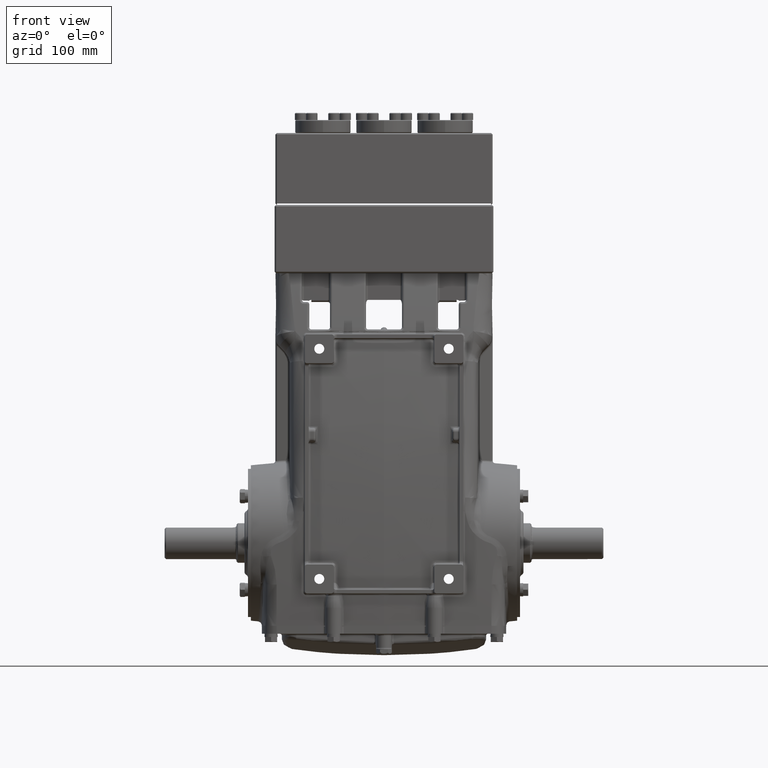
[diagram: clean part render]
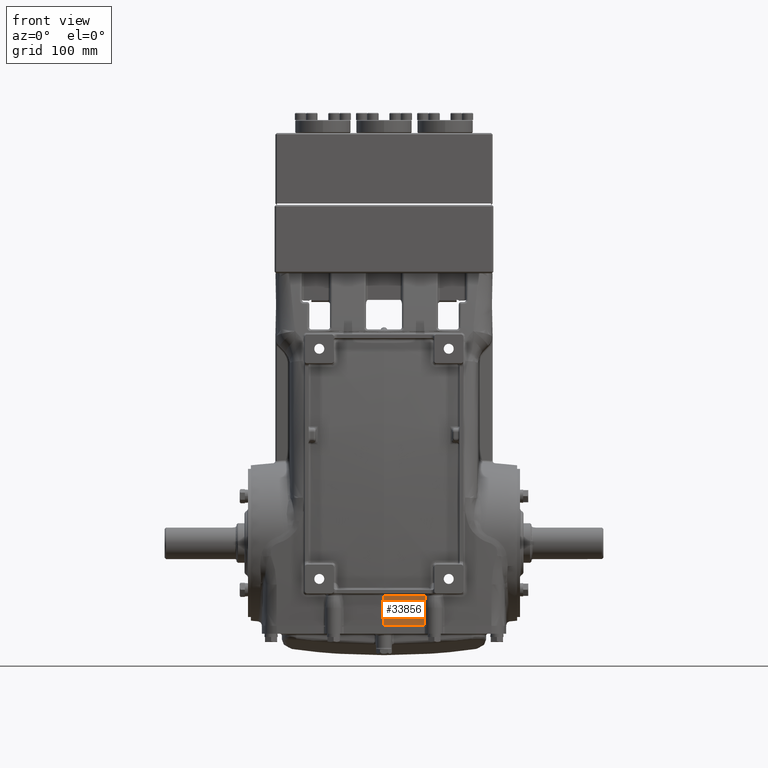
[diagram: same view with one face highlighted and labeled with its STEP entity id]
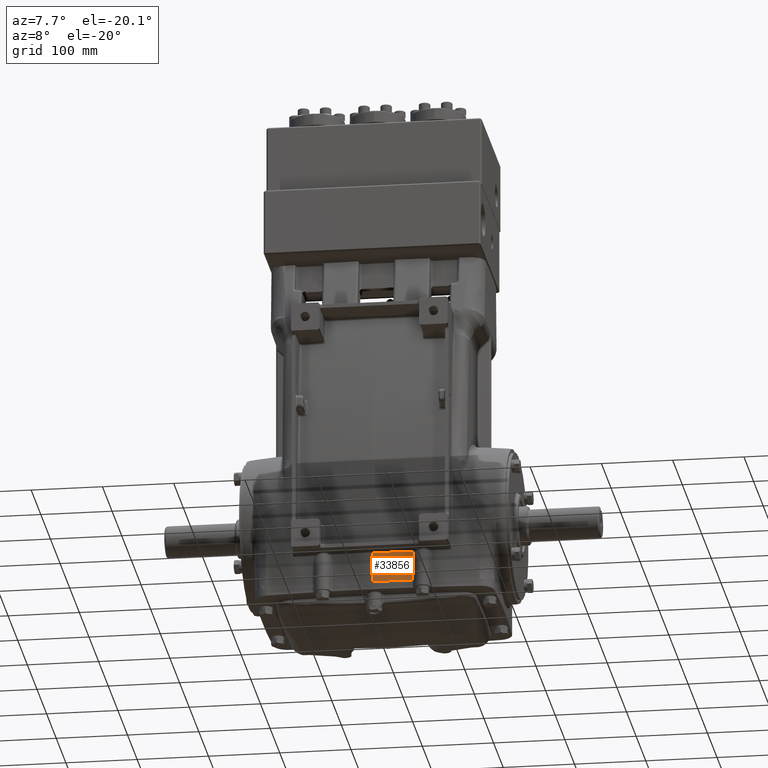
[diagram: same view with one face highlighted and labeled with its STEP entity id]
A machine part, front view. The second image highlights one B-rep face of the part: STEP entity #33856.
A second angle (auxiliary view) of the same face is appended — the face is thin or edge-on in the first view.
In plain terms, the highlighted face is a freeform B-spline surface patch.
Its self-contained STEP definition (entity closure, byte-faithful):
#74 = CARTESIAN_POINT ( 'NONE',  ( 8.136273316822876467, -4.136040923421456128, -4.592266307971319073 ) ) ;
#473 = CARTESIAN_POINT ( 'NONE',  ( 8.135920943346530265, -4.138785722996266792, -4.527559055118102194 ) ) ;
#870 = CARTESIAN_POINT ( 'NONE',  ( 9.804603538636959215, -4.195612680810072881, 1.943166230203482225 ) ) ;
#1003 = ORIENTED_EDGE ( 'NONE', *, *, #52992, .F. ) ;
#1137 = EDGE_CURVE ( 'NONE', #8242, #59602, #36420, .T. ) ;
#1263 = CARTESIAN_POINT ( 'NONE',  ( 6.833064749036533492, -4.271718344480565754, -4.656973560824541281 ) ) ;
#1303 = B_SPLINE_CURVE_WITH_KNOTS ( 'NONE', 3,
 ( #53174, #22742, #47550, #66405, #28757, #17935, #54354 ),
 .UNSPECIFIED., .F., .F.,
 ( 4, 1, 1, 1, 4 ),
 ( 0.000000000000000000, 0.08245597491133860313, 0.1485427382782447125, 0.1620810417057126085, 0.2223918696806881645 ),
 .UNSPECIFIED. ) ;
#1662 = CARTESIAN_POINT ( 'NONE',  ( 6.778283963192261119, -4.023856148172574976, 8.422581710757208739 ) ) ;
#2060 = CARTESIAN_POINT ( 'NONE',  ( 0.7392324407370322037, -4.595575017248754612, -4.721680813677755495 ) ) ;
#2459 = CARTESIAN_POINT ( 'NONE',  ( 6.833335941045664441, -4.268988197017606900, -4.721680813677756383 ) ) ;
#4029 = CARTESIAN_POINT ( 'NONE',  ( 2.286396843509931109, -4.621172251681104903, -2.871569680101456523 ) ) ;
#5303 = CARTESIAN_POINT ( 'NONE',  ( 8.136625690299220892, -4.133296123846644576, -4.656973560824535063 ) ) ;
#5703 = CARTESIAN_POINT ( 'NONE',  ( 9.330223120179205409, -3.732059769306459884, 8.422581710757210516 ) ) ;
#6084 = CARTESIAN_POINT ( 'NONE',  ( 10.04577710926009182, -3.885247339332980054, -4.656973560824543945 ) ) ;
#6882 = CARTESIAN_POINT ( 'NONE',  ( 8.136978063775567094, -4.130551324271833913, -4.721680813677751054 ) ) ;
#7276 = CARTESIAN_POINT ( 'NONE',  ( 0.8149290258095023276, -3.028218001076291355, 14.76377952755897383 ) ) ;
#7284 = VERTEX_POINT ( 'NONE', #35655 ) ;
#7668 = CARTESIAN_POINT ( 'NONE',  ( 2.708190288782601929, -4.552099645568209674, -4.656973560824543057 ) ) ;
#8061 = CARTESIAN_POINT ( 'NONE',  ( 0.7399819118763637515, -4.603681021773706306, -4.527559055118107523 ) ) ;
#8167 = CARTESIAN_POINT ( 'NONE',  ( 0.7622767278752563547, -4.658059392713063573, -2.871568059938352846 ) ) ;
#8242 = VERTEX_POINT ( 'NONE', #33223 ) ;
#8461 = CARTESIAN_POINT ( 'NONE',  ( 4.649375982716229316, -4.726046614213196939, 1.943166230203471567 ) ) ;
#8859 = CARTESIAN_POINT ( 'NONE',  ( 1.925340981245132754, -4.581360688026997252, -4.527559055118101305 ) ) ;
#10429 = CARTESIAN_POINT ( 'NONE',  ( 6.003581252353306379E-15, -4.600890810441183199, -4.656973560824543945 ) ) ;
#11021 = CARTESIAN_POINT ( 'NONE',  ( -8.936424589452269154E-16, -4.658059392713063573, -2.871568059938353734 ) ) ;
#11322 = CARTESIAN_POINT ( 'NONE',  ( 10.04577710926009182, -3.882543138254359150, -4.721680813677759936 ) ) ;
#11433 = ORIENTED_EDGE ( 'NONE', *, *, #75117, .F. ) ;
#11718 = CARTESIAN_POINT ( 'NONE',  ( 7.516246092718290583, -4.478060172712870823, 1.943166230203484224 ) ) ;
#12503 = CARTESIAN_POINT ( 'NONE',  ( 8.780550963363717543, -4.058224466466718638, -4.592266307971327954 ) ) ;
#12887 = CARTESIAN_POINT ( 'NONE',  ( 10.04577710926007583, -4.161075849352311451, 1.943166230203482225 ) ) ;
#13291 = CARTESIAN_POINT ( 'NONE',  ( 0.7899466544984574679, -4.344729339611482999, 8.422581710757190976 ) ) ;
#13684 = CARTESIAN_POINT ( 'NONE',  ( 5.413705272760017451, -4.395558932012422204, -4.656973560824563485 ) ) ;
#14086 = CARTESIAN_POINT ( 'NONE',  ( 1.271576510491507550, -4.592613595374825941, -4.592266307971319073 ) ) ;
#14482 = CARTESIAN_POINT ( 'NONE',  ( 0.2832288182468694071, -4.347787444496944431, 8.422581710757240714 ) ) ;
#14878 = CARTESIAN_POINT ( 'NONE',  ( 1.964061495921458844, -4.850722171969754193, 1.943166230203517308 ) ) ;
#15212 = ORIENTED_EDGE ( 'NONE', *, *, #76302, .F. ) ;
#15272 = CARTESIAN_POINT ( 'NONE',  ( 0.2617201313986859956, -4.598186609362562294, -4.721680813677759048 ) ) ;
#16066 = CARTESIAN_POINT ( 'NONE',  ( -5.544917873066535615E-15, -4.347787444496944431, 8.422581710757240714 ) ) ;
#17271 = CARTESIAN_POINT ( 'NONE',  ( 1.166750935531556276E-15, -4.606299212598425896, -4.527559055118112852 ) ) ;
#17314 = CARTESIAN_POINT ( 'NONE',  ( 9.813683176984632439, -3.918483937359276137, -4.656973560824545721 ) ) ;
#17704 = CARTESIAN_POINT ( 'NONE',  ( 9.813594160922399112, -3.921200885824479787, -4.592266307971329731 ) ) ;
#17935 = CARTESIAN_POINT ( 'NONE',  ( 1.982082809892522723, -4.578873645653913194, -4.527559055118103082 ) ) ;
#18085 = CARTESIAN_POINT ( 'NONE',  ( 9.373807410501107995, -3.984680738766252173, -4.527559055118117293 ) ) ;
#18488 = CARTESIAN_POINT ( 'NONE',  ( 8.718250130616125304, -3.810182812353625881, 8.422581710757270912 ) ) ;
#18879 = FACE_OUTER_BOUND ( 'NONE', #41543, .T. ) ;
#19217 = ORIENTED_EDGE ( 'NONE', *, *, #1137, .T. ) ;
#19272 = CARTESIAN_POINT ( 'NONE',  ( 1.271245932491347874, -4.589915476206400946, -4.656973560824534175 ) ) ;
#19664 = CARTESIAN_POINT ( 'NONE',  ( 1.166750935531556276E-15, -4.606299212598425896, -4.527559055118112852 ) ) ;
#19670 = CARTESIAN_POINT ( 'NONE',  ( 2.784098044332857125, -4.295940717290989141, 8.422581710757331308 ) ) ;
#20051 = CARTESIAN_POINT ( 'NONE',  ( 3.677771778863302199, -4.509885198506749404, -4.592266307971359041 ) ) ;
#20439 = CARTESIAN_POINT ( 'NONE',  ( 0.7394822644501427567, -4.598277018757071843, -4.656973560824539504 ) ) ;
#20832 = CARTESIAN_POINT ( 'NONE',  ( 2.002782010597783824, -4.320731672086859376, 8.422581710757299334 ) ) ;
#21225 = CARTESIAN_POINT ( 'NONE',  ( 2.237011402393538351, -4.617921027179718862, -3.090750292144865963 ) ) ;
#21379 = B_SPLINE_CURVE_WITH_KNOTS ( 'NONE', 3,
 ( #51714, #44922, #57735, #75729 ),
 .UNSPECIFIED., .F., .F.,
 ( 4, 4 ),
 ( 0.000000000000000000, 0.02510467332354146541 ),
 .UNSPECIFIED. ) ;
#22742 = CARTESIAN_POINT ( 'NONE',  ( 0.2620379937659005343, -4.606299212598425008, -4.527559055118111964 ) ) ;
#24083 = CARTESIAN_POINT ( 'NONE',  ( 7.550589100857566294, -4.198588719668536307, -4.656973560824532399 ) ) ;
#25272 = CARTESIAN_POINT ( 'NONE',  ( 1.924566570951606215, -4.575973458348141953, -4.656973560824534175 ) ) ;
#25655 = CARTESIAN_POINT ( 'NONE',  ( -1.067225044464336913E-15, -4.629366519748435493, -3.975594895278447005 ) ) ;
#25661 = CARTESIAN_POINT ( 'NONE',  ( 5.413609788144460033, -4.400973501999735582, -4.527559055118132392 ) ) ;
#26061 = CARTESIAN_POINT ( 'NONE',  ( 4.668920579875790011, -2.879400688205008496, 14.76377952755902889 ) ) ;
#26450 = CARTESIAN_POINT ( 'NONE',  ( 6.206882071990785121, -4.076465440027476461, 8.422581710757208739 ) ) ;
#26849 = CARTESIAN_POINT ( 'NONE',  ( 5.408835557366600710, -4.671702001365406254, 1.943166230203468459 ) ) ;
#28039 = CARTESIAN_POINT ( 'NONE',  ( 6.054976045372554899E-15, -4.598186609362562294, -4.721680813677759936 ) ) ;
#28757 = CARTESIAN_POINT ( 'NONE',  ( 1.735429068353783855, -4.585415369245529504, -4.527559055118102194 ) ) ;
#29620 = EDGE_CURVE ( 'NONE', #59602, #35292, #1303, .T. ) ;
#30105 = CARTESIAN_POINT ( 'NONE',  ( 8.780241008971938044, -4.060967303927975003, -4.527559055118111964 ) ) ;
#30492 = CARTESIAN_POINT ( 'NONE',  ( 8.749245569794030786, -4.335251050053626543, 1.943166230203497991 ) ) ;
#30885 = CARTESIAN_POINT ( 'NONE',  ( 9.374461174855936108, -3.976479773550764651, -4.721680813677765265 ) ) ;
#31289 = CARTESIAN_POINT ( 'NONE',  ( 8.030208900442749709, -2.576162122246953956, 14.76377952755909284 ) ) ;
#31681 = CARTESIAN_POINT ( 'NONE',  ( 6.832793557027403430, -4.274448491943524608, -4.592266307971325290 ) ) ;
#32072 = CARTESIAN_POINT ( 'NONE',  ( 1.371080488539591968, -3.018683991878269079, 14.76377952755904843 ) ) ;
#32476 = CARTESIAN_POINT ( 'NONE',  ( 3.677514481449129846, -4.507195010719162731, -4.656973560824575031 ) ) ;
#32868 = CARTESIAN_POINT ( 'NONE',  ( 4.639505961150648616, -4.453640752885090315, -4.592266307971333283 ) ) ;
#33223 = CARTESIAN_POINT ( 'NONE',  ( -8.936424589452269154E-16, -4.658059392713063573, -2.871568059938353734 ) ) ;
#33264 = CARTESIAN_POINT ( 'NONE',  ( 2.707814507814531257, -4.549410571035791051, -4.721680813677759048 ) ) ;
#33856 = ADVANCED_FACE ( 'NONE', ( #18879 ), #51344, .T. ) ;
#34050 = CARTESIAN_POINT ( 'NONE',  ( 5.900791666314808552E-15, -4.606299212598425008, -4.527559055118112852 ) ) ;
#35237 = CARTESIAN_POINT ( 'NONE',  ( 5.952186459334057860E-15, -4.603595011519804103, -4.592266307971328843 ) ) ;
#35292 = VERTEX_POINT ( 'NONE', #40369 ) ;
#35655 = CARTESIAN_POINT ( 'NONE',  ( 2.286396843509931109, -4.621172251681104903, -2.871569680101456523 ) ) ;
#35714 = CARTESIAN_POINT ( 'NONE',  ( 9.795701932413749091, -3.667955543504810123, 8.422581710757242490 ) ) ;
#36420 = B_SPLINE_CURVE_WITH_KNOTS ( 'NONE', 3,
 ( #11021, #56100, #25655, #19664 ),
 .UNSPECIFIED., .F., .F.,
 ( 4, 4 ),
 ( 0.9146982547548789810, 1.000000000000000000 ),
 .UNSPECIFIED. ) ;
#36893 = CARTESIAN_POINT ( 'NONE',  ( 7.448906861072648766, -2.639979940783716561, 14.76377952755903600 ) ) ;
#37288 = CARTESIAN_POINT ( 'NONE',  ( 9.813772193046863990, -3.915766988894072043, -4.721680813677761712 ) ) ;
#37684 = CARTESIAN_POINT ( 'NONE',  ( 6.244704339401563331, -4.329000664252864006, -4.592266307971338613 ) ) ;
#38080 = CARTESIAN_POINT ( 'NONE',  ( 2.821676141139911831, -2.978136681165881150, 14.76377952755918699 ) ) ;
#38476 = CARTESIAN_POINT ( 'NONE',  ( 2.041502525274107249, -3.003381666662710892, 14.76377952755913370 ) ) ;
#38877 = CARTESIAN_POINT ( 'NONE',  ( 6.832522365018273369, -4.277178639406483462, -4.527559055118109299 ) ) ;
#39273 = CARTESIAN_POINT ( 'NONE',  ( 6.245080680370824311, -4.323559701470772509, -4.721680813677770594 ) ) ;
#40369 = CARTESIAN_POINT ( 'NONE',  ( 2.184664243010236984, -4.572640839853370665, -4.527559055118109299 ) ) ;
#41244 = CARTESIAN_POINT ( 'NONE',  ( 0.2618260855210908233, -4.600890810441183199, -4.656973560824543945 ) ) ;
#41543 = EDGE_LOOP ( 'NONE', ( #19217, #52120, #15212, #1003, #11433 ) ) ;
#42135 = CARTESIAN_POINT ( 'NONE',  ( 8.781170872147274764, -4.052738791544205910, -4.721680813677760824 ) ) ;
#43314 = CARTESIAN_POINT ( 'NONE',  ( 10.04577710926004208, -2.315852591883929890, 14.76377952755905376 ) ) ;
#43423 = CARTESIAN_POINT ( 'NONE',  ( -8.936424589452269154E-16, -4.658059392713063573, -2.871568059938353734 ) ) ;
#43705 = CARTESIAN_POINT ( 'NONE',  ( 5.413657530452238298, -4.398266217006079337, -4.592266307971348382 ) ) ;
#43815 = CARTESIAN_POINT ( 'NONE',  ( 2.286396843509931109, -4.621172251681104903, -2.871569680101456523 ) ) ;
#44106 = CARTESIAN_POINT ( 'NONE',  ( 3.703758817694700944, -4.781594165052963419, 1.943166230203458023 ) ) ;
#44503 = CARTESIAN_POINT ( 'NONE',  ( 1.304964888507643472, -4.865123631385777081, 1.943166230203488221 ) ) ;
#44886 = CARTESIAN_POINT ( 'NONE',  ( 2.746519947525800642, -4.826385247874843465, 1.943166230203528411 ) ) ;
#44922 = CARTESIAN_POINT ( 'NONE',  ( 2.192423589991714383, -4.597831158115078587, -3.869168374944587985 ) ) ;
#45285 = CARTESIAN_POINT ( 'NONE',  ( 6.805403164105268132, -4.550193385702355542, 1.943166230203468459 ) ) ;
#45664 = CARTESIAN_POINT ( 'NONE',  ( 2.196966643493059035, -4.610615744526527671, -3.426825568646710174 ) ) ;
#46070 = CARTESIAN_POINT ( 'NONE',  ( 0.2620379937659005343, -4.606299212598425008, -4.527559055118111964 ) ) ;
#46467 = CARTESIAN_POINT ( 'NONE',  ( -1.301789904605454270E-14, -3.031496062992124596, 14.76377952755905376 ) ) ;
#47550 = CARTESIAN_POINT ( 'NONE',  ( 0.7399819118763637515, -4.603681021773706306, -4.527559055118107523 ) ) ;
#47712 = CARTESIAN_POINT ( 'NONE',  ( 9.374243253404326737, -3.979213428622593973, -4.656973560824549274 ) ) ;
#47973 = CARTESIAN_POINT ( 'NONE',  ( 2.195805740867309730, -4.607348853672229794, -3.539858999831082542 ) ) ;
#48108 = CARTESIAN_POINT ( 'NONE',  ( 9.374025331952717366, -3.981947083694422851, -4.592266307971333283 ) ) ;
#48502 = CARTESIAN_POINT ( 'NONE',  ( 7.550925797015794139, -4.195848803462219223, -4.721680813677748390 ) ) ;
#48886 = CARTESIAN_POINT ( 'NONE',  ( 8.100683595711938523, -4.413265680477349129, 1.943166230203502876 ) ) ;
#49298 = CARTESIAN_POINT ( 'NONE',  ( 10.04577710926009182, -3.890655741490221864, -4.527559055118112852 ) ) ;
#49688 = CARTESIAN_POINT ( 'NONE',  ( 1.924179365804842945, -4.573279843508714748, -4.721680813677750166 ) ) ;
#50082 = CARTESIAN_POINT ( 'NONE',  ( 4.639603684136446304, -4.456337840621012347, -4.527559055118117293 ) ) ;
#50491 = CARTESIAN_POINT ( 'NONE',  ( 4.639408238164851817, -4.450943665149169171, -4.656973560824549274 ) ) ;
#50875 = CARTESIAN_POINT ( 'NONE',  ( 3.755218300529151954, -2.933568249377660919, 14.76377952755903955 ) ) ;
#51171 = B_SPLINE_CURVE_WITH_KNOTS ( 'NONE', 3,
 ( #43423, #8167, #68646, #43815 ),
 .UNSPECIFIED., .F., .F.,
 ( 4, 4 ),
 ( 1.385247428613841964E-16, 0.05808540592679204556 ),
 .UNSPECIFIED. ) ;
#51269 = CARTESIAN_POINT ( 'NONE',  ( 2.708566069750672600, -4.554788720100628296, -4.592266307971327066 ) ) ;
#51344 = B_SPLINE_SURFACE_WITH_KNOTS ( 'NONE', 3, 3, ( 
 ( #43314, #67748, #12887, #49298, #72945, #6084, #11322 ),
 ( #72160, #35714, #870, #66969, #17704, #17314, #37288 ),
 ( #73343, #5703, #61739, #18085, #48108, #47712, #30885 ),
 ( #55309, #18488, #30492, #30105, #12503, #54911, #42135 ),
 ( #31289, #60146, #48886, #473, #74, #5303, #6882 ),
 ( #36893, #66561, #11718, #54509, #78939, #24083, #48502 ),
 ( #61341, #1662, #45285, #38877, #31681, #1263, #2459 ),
 ( #57690, #26450, #63318, #56904, #37684, #75690, #39273 ),
 ( #56108, #68547, #26849, #25661, #43705, #13684, #74919 ),
 ( #26061, #69729, #8461, #50082, #32868, #50491, #74527 ),
 ( #50875, #63718, #44106, #57296, #20051, #32476, #62136 ),
 ( #38080, #19670, #44886, #62530, #51269, #7668, #33264 ),
 ( #38476, #20832, #14878, #8859, #68944, #25272, #49688 ),
 ( #32072, #68150, #44503, #74130, #14086, #19272, #56499 ),
 ( #7276, #13291, #62920, #8061, #75305, #20439, #2060 ),
 ( #69331, #14482, #71305, #46070, #65701, #41244, #15272 ),
 ( #46467, #16066, #76880, #34050, #35237, #10429, #28039 ) ),
 .UNSPECIFIED., .F., .F., .F.,
 ( 4, 1, 1, 1, 1, 1, 1, 1, 1, 1, 1, 1, 1, 1, 4 ),
 ( 4, 3, 4 ),
 ( 0.6416899016319266291, 0.6680709144412995126, 0.6910511929030633826, 0.7070270417424607823, 0.7380269954074184513, 0.7537315596691966935, 0.7829012457735833319, 0.7996549019161131033, 0.8403417066807266078, 0.8632468234832121334, 0.8997714546634835164, 0.9419247260028263957, 0.9467756368356592400, 0.9704551915184829181, 1.000000000000000000 ),
 ( 0.000000000000000000, 1.000000000000000000, 1.010000000000000009 ),
 .UNSPECIFIED. ) ;
#51664 = CARTESIAN_POINT ( 'NONE',  ( 2.271869855651215353, -4.620519539316596536, -2.925681234428256783 ) ) ;
#51714 = CARTESIAN_POINT ( 'NONE',  ( 2.195805740867309730, -4.607348853672229794, -3.539858999831082542 ) ) ;
#52050 = CARTESIAN_POINT ( 'NONE',  ( 2.205039322484259046, -4.613408581373194650, -3.314379400631436656 ) ) ;
#52120 = ORIENTED_EDGE ( 'NONE', *, *, #29620, .T. ) ;
#52992 = EDGE_CURVE ( 'NONE', #7284, #77821, #74172, .T. ) ;
#53174 = CARTESIAN_POINT ( 'NONE',  ( 1.166750935531556276E-15, -4.606299212598425896, -4.527559055118112852 ) ) ;
#54354 = CARTESIAN_POINT ( 'NONE',  ( 2.184664243010236984, -4.572640839853370665, -4.527559055118109299 ) ) ;
#54509 = CARTESIAN_POINT ( 'NONE',  ( 7.549915708541110604, -4.204068552081169585, -4.527559055118101305 ) ) ;
#54911 = CARTESIAN_POINT ( 'NONE',  ( 8.780860917755495265, -4.055481629005462274, -4.656973560824543945 ) ) ;
#55309 = CARTESIAN_POINT ( 'NONE',  ( 8.687254691438219822, -2.497755069112371995, 14.76377952755909462 ) ) ;
#56100 = CARTESIAN_POINT ( 'NONE',  ( -9.761888856022270607E-16, -4.646617431921900909, -3.423567502208719748 ) ) ;
#56108 = CARTESIAN_POINT ( 'NONE',  ( 5.399287095810881176, -2.827095526904189082, 14.76377952755905199 ) ) ;
#56499 = CARTESIAN_POINT ( 'NONE',  ( 1.270915354491187976, -4.587217357037975951, -4.721680813677750166 ) ) ;
#56904 = CARTESIAN_POINT ( 'NONE',  ( 6.244516168916932841, -4.331721145643910198, -4.527559055118123510 ) ) ;
#57296 = CARTESIAN_POINT ( 'NONE',  ( 3.678029076277474552, -4.512575386294336077, -4.527559055118143050 ) ) ;
#57690 = CARTESIAN_POINT ( 'NONE',  ( 6.188065023527709485, -2.761802089765181822, 14.76377952755900935 ) ) ;
#57735 = CARTESIAN_POINT ( 'NONE',  ( 2.188578241305226602, -4.586261197518386012, -4.198406895401300964 ) ) ;
#58477 = CARTESIAN_POINT ( 'NONE',  ( 2.227679473177842429, -4.616882071725342485, -3.146605088359970992 ) ) ;
#59602 = VERTEX_POINT ( 'NONE', #17271 ) ;
#60146 = CARTESIAN_POINT ( 'NONE',  ( 8.065446248077345004, -3.888393654132777488, 8.422581710757270912 ) ) ;
#61341 = CARTESIAN_POINT ( 'NONE',  ( 6.751164762279253218, -2.710159405101540742, 14.76377952755900225 ) ) ;
#61739 = CARTESIAN_POINT ( 'NONE',  ( 9.352015265340156702, -4.258046245949182129, 1.943166230203464906 ) ) ;
#62136 = CARTESIAN_POINT ( 'NONE',  ( 3.677257184034957049, -4.504504822931576058, -4.721680813677791022 ) ) ;
#62530 = CARTESIAN_POINT ( 'NONE',  ( 2.708941850718743272, -4.557477794633046031, -4.527559055118110187 ) ) ;
#62920 = CARTESIAN_POINT ( 'NONE',  ( 0.7649642831874112758, -4.873881172605420531, 1.943166230203459577 ) ) ;
#63307 = CARTESIAN_POINT ( 'NONE',  ( 2.195805740867309730, -4.607348853672229794, -3.539858999831082542 ) ) ;
#63318 = CARTESIAN_POINT ( 'NONE',  ( 6.225699120453859869, -4.603769284748519652, 1.943166230203460909 ) ) ;
#63718 = CARTESIAN_POINT ( 'NONE',  ( 3.729488559111926893, -4.251260959985939003, 8.422581710757222950 ) ) ;
#65701 = CARTESIAN_POINT ( 'NONE',  ( 0.2619320396434957066, -4.603595011519804103, -4.592266307971327954 ) ) ;
#66405 = CARTESIAN_POINT ( 'NONE',  ( 1.271907088491667448, -4.595311714543250936, -4.527559055118103082 ) ) ;
#66561 = CARTESIAN_POINT ( 'NONE',  ( 7.482576476895471451, -3.952699809518920748, 8.422581710757233608 ) ) ;
#66969 = CARTESIAN_POINT ( 'NONE',  ( 9.813505144860167562, -3.923917834289683881, -4.527559055118114628 ) ) ;
#67748 = CARTESIAN_POINT ( 'NONE',  ( 10.04577710926006162, -3.632143973388746616, 8.422581710757240714 ) ) ;
#68150 = CARTESIAN_POINT ( 'NONE',  ( 1.338022688523618386, -4.335583564402649692, 8.422581710757242490 ) ) ;
#68547 = CARTESIAN_POINT ( 'NONE',  ( 5.404061326588741387, -4.143078516905423392, 8.422581710757231832 ) ) ;
#68646 = CARTESIAN_POINT ( 'NONE',  ( 1.524516704436731818, -4.645756993228593146, -2.871568836902993027 ) ) ;
#68944 = CARTESIAN_POINT ( 'NONE',  ( 1.924953776098369485, -4.578667073187570047, -4.592266307971317296 ) ) ;
#69331 = CARTESIAN_POINT ( 'NONE',  ( 0.2938242304873521227, -3.031496062992124596, 14.76377952755905376 ) ) ;
#69729 = CARTESIAN_POINT ( 'NONE',  ( 4.659148281296010552, -4.196403403979729774, 8.422581710757222950 ) ) ;
#71305 = CARTESIAN_POINT ( 'NONE',  ( 0.2726334060063855813, -4.876719320460511042, 1.943166230203482892 ) ) ;
#72160 = CARTESIAN_POINT ( 'NONE',  ( 9.786800326190538968, -2.352938900658293697, 14.76377952755905554 ) ) ;
#72945 = CARTESIAN_POINT ( 'NONE',  ( 10.04577710926009182, -3.887951540411600959, -4.592266307971328843 ) ) ;
#73343 = CARTESIAN_POINT ( 'NONE',  ( 9.308430975018255893, -2.418713787122484415, 14.76377952755900935 ) ) ;
#74130 = CARTESIAN_POINT ( 'NONE',  ( 1.271907088491667448, -4.595311714543250936, -4.527559055118103082 ) ) ;
#74172 = B_SPLINE_CURVE_WITH_KNOTS ( 'NONE', 3,
 ( #4029, #51664, #76083, #21225, #58477, #52050, #45664, #63307 ),
 .UNSPECIFIED., .F., .F.,
 ( 4, 2, 2, 4 ),
 ( 0.06403053087505185259, 0.06828669695013807328, 0.07254286302522429397, 0.08105519517539670760 ),
 .UNSPECIFIED. ) ;
#74527 = CARTESIAN_POINT ( 'NONE',  ( 4.639310515179054129, -4.448246577413247138, -4.721680813677765265 ) ) ;
#74919 = CARTESIAN_POINT ( 'NONE',  ( 5.413753015067796603, -4.392851647018765959, -4.721680813677779476 ) ) ;
#75117 = EDGE_CURVE ( 'NONE', #8242, #7284, #51171, .T. ) ;
#75305 = CARTESIAN_POINT ( 'NONE',  ( 0.7397320881632531986, -4.600979020265389074, -4.592266307971323513 ) ) ;
#75690 = CARTESIAN_POINT ( 'NONE',  ( 6.244892509886193821, -4.326280182861818702, -4.656973560824554603 ) ) ;
#75729 = CARTESIAN_POINT ( 'NONE',  ( 2.184664243010236984, -4.572640839853370665, -4.527559055118109299 ) ) ;
#76083 = CARTESIAN_POINT ( 'NONE',  ( 2.259102275936850202, -4.619738410491596170, -2.980344347557006834 ) ) ;
#76302 = EDGE_CURVE ( 'NONE', #77821, #35292, #21379, .T. ) ;
#76880 = CARTESIAN_POINT ( 'NONE',  ( 7.613123643899153952E-16, -4.876719320460511042, 1.943166230203482225 ) ) ;
#77821 = VERTEX_POINT ( 'NONE', #47973 ) ;
#78939 = CARTESIAN_POINT ( 'NONE',  ( 7.550252404699338449, -4.201328635874852502, -4.592266307971317296 ) ) ;